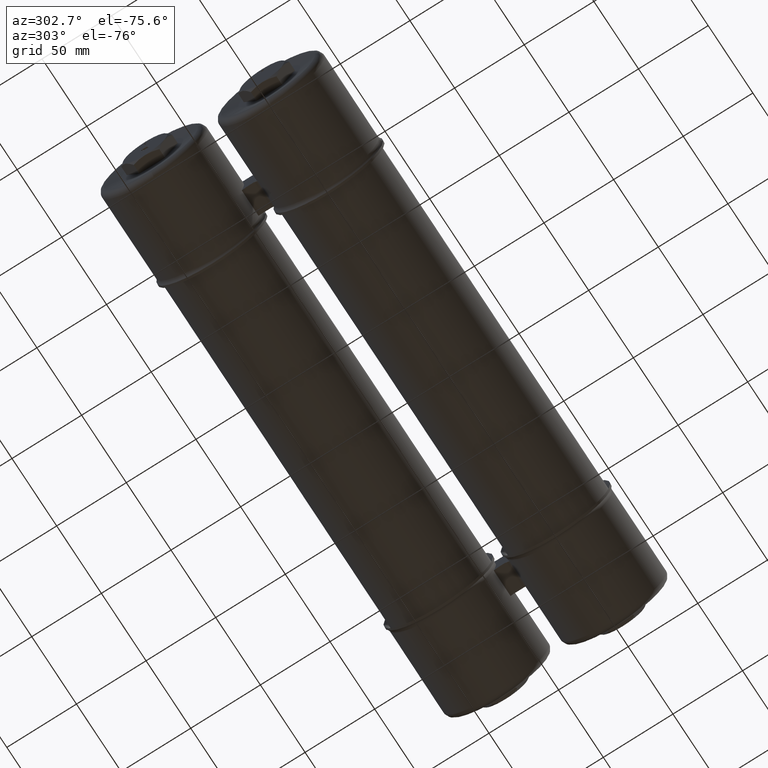
[diagram: clean part render]
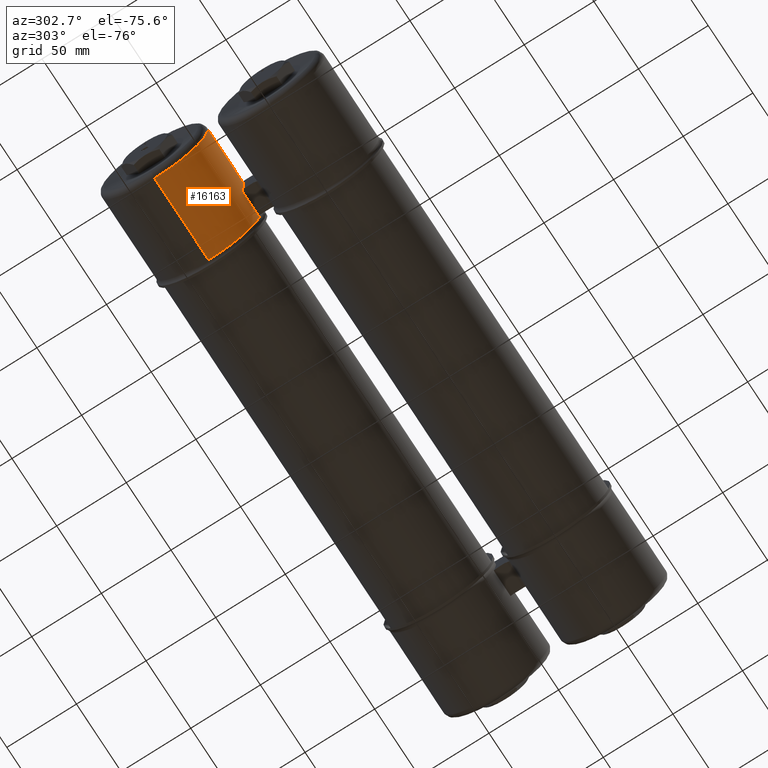
[diagram: same view with one face highlighted and labeled with its STEP entity id]
A machine part, auxiliary view. The second image highlights one B-rep face of the part: STEP entity #16163.
In plain terms, the highlighted cylindrical surface (partial cylindrical patch) has radius 38.0746 mm, axis along (1, -0, 0).
Its self-contained STEP definition (entity closure, byte-faithful):
#97 = DIRECTION ( 'NONE',  ( 1.000000000000000000, -6.121189672418499660E-17, 5.226952353543994727E-16 ) ) ;
#112 = DIRECTION ( 'NONE',  ( -5.467340881249376455E-16, -3.644893920832917637E-16, -1.000000000000000000 ) ) ;
#297 = DIRECTION ( 'NONE',  ( 1.000000000000000000, -6.121189672418499660E-17, 5.226952353543994727E-16 ) ) ;
#2018 = VERTEX_POINT ( 'NONE', #23864 ) ;
#2071 = VERTEX_POINT ( 'NONE', #31608 ) ;
#2508 = CARTESIAN_POINT ( 'NONE',  ( -0.06499999999999975242, 3.311999999999966082, 1.498999999999959254 ) ) ;
#3201 = VERTEX_POINT ( 'NONE', #19246 ) ;
#3376 = EDGE_LOOP ( 'NONE', ( #15846, #4149, #7093, #17406, #25417 ) ) ;
#3807 = CARTESIAN_POINT ( 'NONE',  ( 0.04500000000000019956, 3.311999999999965638, -3.577046309787705273E-14 ) ) ;
#4149 = ORIENTED_EDGE ( 'NONE', *, *, #31249, .T. ) ;
#4400 = EDGE_CURVE ( 'NONE', #24168, #32819, #8725, .T. ) ;
#5207 = FACE_OUTER_BOUND ( 'NONE', #3376, .T. ) ;
#7093 = ORIENTED_EDGE ( 'NONE', *, *, #4400, .T. ) ;
#8295 = VECTOR ( 'NONE', #97, 39.37007874015748143 ) ;
#8725 = LINE ( 'NONE', #26746, #8295 ) ;
#9413 = AXIS2_PLACEMENT_3D ( 'NONE', #36181, #35976, #12125 ) ;
#11560 = AXIS2_PLACEMENT_3D ( 'NONE', #36353, #297, #112 ) ;
#12125 = DIRECTION ( 'NONE',  ( -5.239535011197319719E-16, -3.644893920832917637E-16, -1.000000000000000000 ) ) ;
#13731 = VECTOR ( 'NONE', #32711, 39.37007874015748143 ) ;
#14679 = CARTESIAN_POINT ( 'NONE',  ( 0.04499999999999941547, 3.311999999999965194, -1.499000000000035193 ) ) ;
#15846 = ORIENTED_EDGE ( 'NONE', *, *, #29172, .F. ) ;
#16163 = ADVANCED_FACE ( 'NONE', ( #5207 ), #35175, .T. ) ;
#16466 = CARTESIAN_POINT ( 'NONE',  ( 2.428620000000018209, 3.311999999999965638, -3.452455628098159002E-14 ) ) ;
#17406 = ORIENTED_EDGE ( 'NONE', *, *, #25389, .F. ) ;
#18777 = DIRECTION ( 'NONE',  ( 1.000000000000000000, -6.121189672418499660E-17, 5.226952353543994727E-16 ) ) ;
#19246 = CARTESIAN_POINT ( 'NONE',  ( 2.428620000000017320, 3.311999999999966082, 1.498999999999960808 ) ) ;
#20788 = LINE ( 'NONE', #2508, #13731 ) ;
#21106 = CIRCLE ( 'NONE', #21732, 1.498999999999995225 ) ;
#21293 = DIRECTION ( 'NONE',  ( -5.239535011197304928E-16, -3.644893920832907776E-16, -1.000000000000000000 ) ) ;
#21732 = AXIS2_PLACEMENT_3D ( 'NONE', #16466, #34252, #25651 ) ;
#23864 = CARTESIAN_POINT ( 'NONE',  ( 2.428620000000018209, 1.812999999999970635, -3.469440244457648290E-14 ) ) ;
#24168 = VERTEX_POINT ( 'NONE', #14679 ) ;
#25389 = EDGE_CURVE ( 'NONE', #2018, #32819, #28431, .T. ) ;
#25417 = ORIENTED_EDGE ( 'NONE', *, *, #28345, .F. ) ;
#25651 = DIRECTION ( 'NONE',  ( -5.467340881249376455E-16, -3.644893920832917637E-16, -1.000000000000000000 ) ) ;
#26746 = CARTESIAN_POINT ( 'NONE',  ( -0.06500000000000132061, 3.311999999999965194, -1.499000000000030974 ) ) ;
#28345 = EDGE_CURVE ( 'NONE', #3201, #2018, #21106, .T. ) ;
#28431 = CIRCLE ( 'NONE', #11560, 1.498999999999995225 ) ;
#29172 = EDGE_CURVE ( 'NONE', #2071, #3201, #20788, .T. ) ;
#30206 = CARTESIAN_POINT ( 'NONE',  ( 2.428620000000019097, 3.311999999999965194, -1.499000000000029642 ) ) ;
#31249 = EDGE_CURVE ( 'NONE', #2071, #24168, #34292, .T. ) ;
#31608 = CARTESIAN_POINT ( 'NONE',  ( 0.04499999999999941547, 3.311999999999966082, 1.498999999999963695 ) ) ;
#32711 = DIRECTION ( 'NONE',  ( 1.000000000000000000, -6.121189672418499660E-17, 5.226952353543994727E-16 ) ) ;
#32819 = VERTEX_POINT ( 'NONE', #30206 ) ;
#34252 = DIRECTION ( 'NONE',  ( 1.000000000000000000, -6.121189672418499660E-17, 5.226952353543994727E-16 ) ) ;
#34292 = CIRCLE ( 'NONE', #36218, 1.498999999999999444 ) ;
#35175 = CYLINDRICAL_SURFACE ( 'NONE', #9413, 1.498999999999995225 ) ;
#35976 = DIRECTION ( 'NONE',  ( 1.000000000000000000, -6.121189672418499660E-17, 5.226952353543994727E-16 ) ) ;
#36181 = CARTESIAN_POINT ( 'NONE',  ( -0.06500000000000052958, 3.311999999999965638, -3.582795957376603161E-14 ) ) ;
#36218 = AXIS2_PLACEMENT_3D ( 'NONE', #3807, #18777, #21293 ) ;
#36353 = CARTESIAN_POINT ( 'NONE',  ( 2.428620000000018209, 3.311999999999965638, -3.452455628098159002E-14 ) ) ;